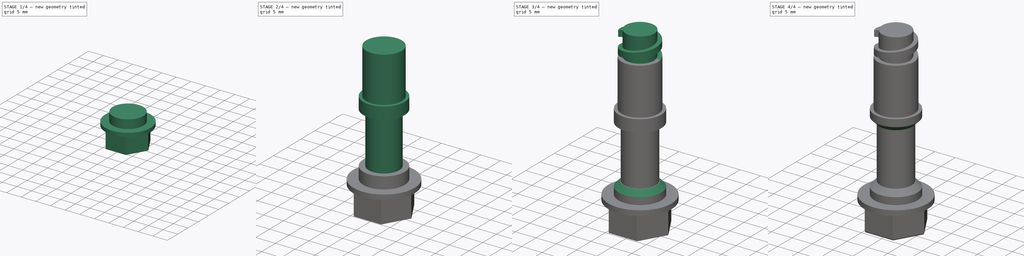
[diagram: build sequence overview — one tinted view per stage of 4, left to right]
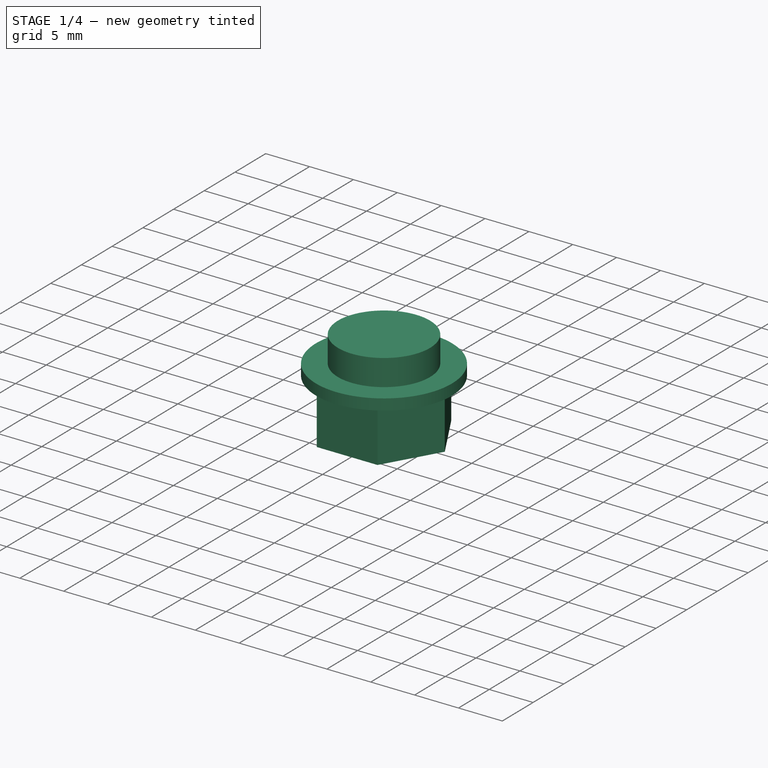
[diagram: stage 1 of 4 — iso view after this stage's code; geometry added in this stage tinted green]
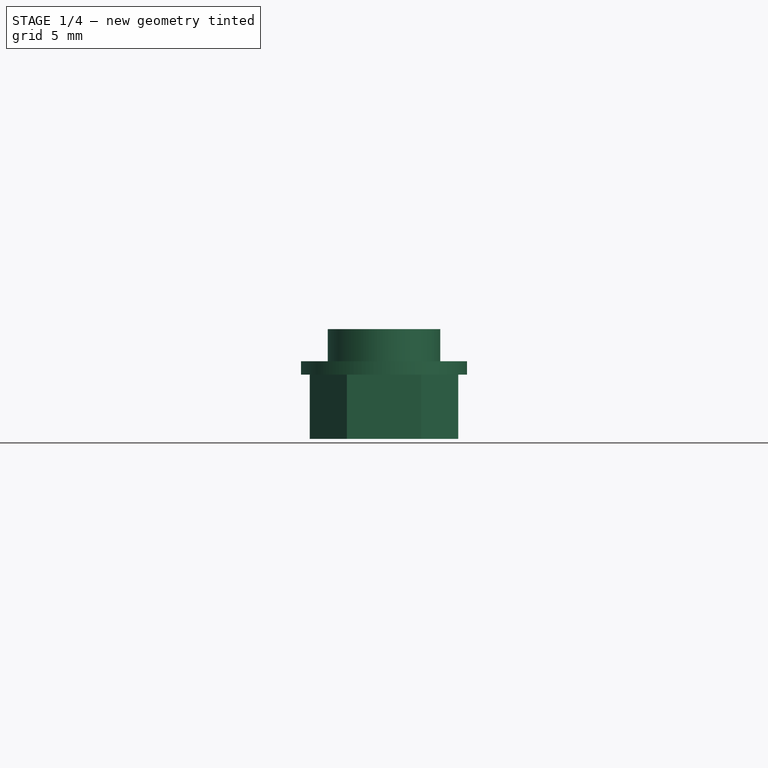
[diagram: stage 1 of 4 — front view after this stage's code; geometry added in this stage tinted green]
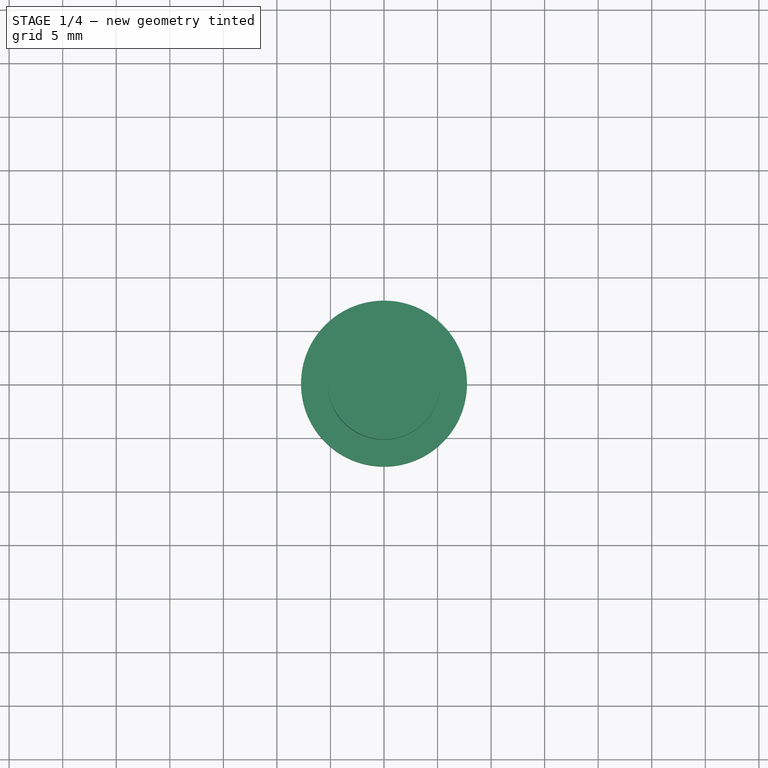
[diagram: stage 1 of 4 — top view after this stage's code; geometry added in this stage tinted green]
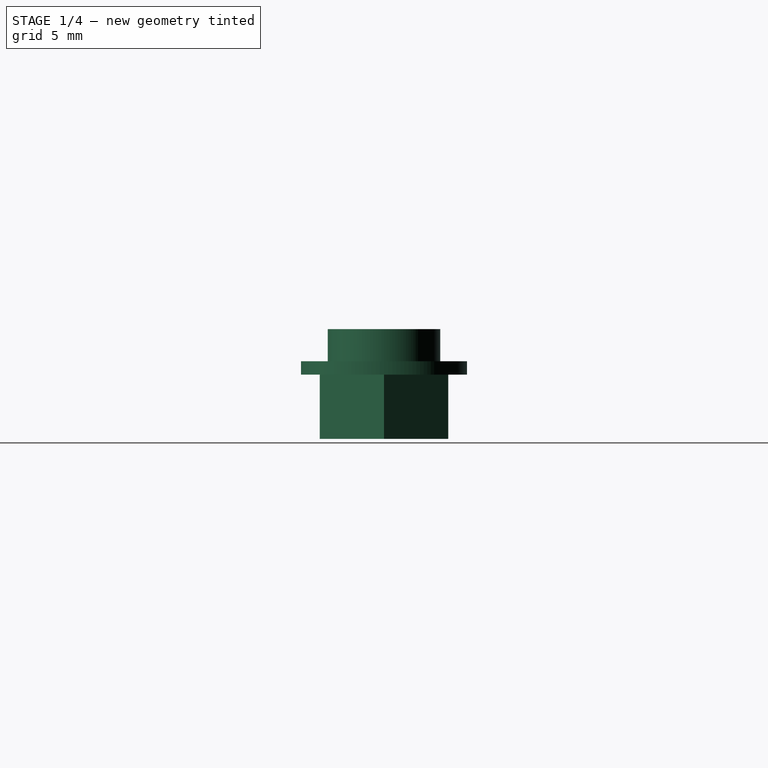
[diagram: stage 1 of 4 — right view after this stage's code; geometry added in this stage tinted green]
FCSTD DOCUMENT  (FreeCAD 0.20R29177 +426 (Git))
Label: ReplacementScrew
License: All rights reserved
LicenseURL: http://en.wikipedia.org/wiki/All_rights_reserved
objects: Sketcher::SketchObject×9, PartDesign::Pad×7, PartDesign::Chamfer×2, PartDesign::Fillet×2, PartDesign::Pocket×1, PartDesign::AdditiveHelix×1, PartDesign::Body×1, App::Part×1
note: 36 computed .brp shape members not serialized (recipe doc carries the construction recipe); baked Part::Feature solids carry a one-line shape summary decoded from their .brp

FEATURE [Sketcher::SketchObject] Sketch
  FullyConstrained = true
  MapMode = 5
  Support = -> [XY_Plane001]
  sketch-geometry (18):
    g0: LineSegment StartX=-6.9282 StartY=2.64837e-11 StartZ=0 EndX=-3.4641 EndY=6 EndZ=0
    g1: LineSegment StartX=-3.4641 StartY=6 StartZ=0 EndX=3.4641 EndY=6 EndZ=0
    g2: LineSegment StartX=3.4641 StartY=6 StartZ=0 EndX=6.9282 EndY=0 EndZ=0
    g3: LineSegment StartX=6.9282 StartY=0 StartZ=0 EndX=3.4641 EndY=-6 EndZ=0
    g4: LineSegment StartX=3.4641 StartY=-6 StartZ=0 EndX=-3.4641 EndY=-6 EndZ=0
    g5: LineSegment StartX=-3.4641 StartY=-6 StartZ=0 EndX=-6.9282 EndY=2.64837e-11 EndZ=0
    g6: LineSegment StartX=-4.6 StartY=1.1 StartZ=0 EndX=-1.1 EndY=1.1 EndZ=0
    g7: LineSegment StartX=4.6 StartY=1.1 StartZ=0 EndX=4.6 EndY=-1.1 EndZ=0
    g8: LineSegment StartX=4.6 StartY=-1.1 StartZ=0 EndX=1.1 EndY=-1.1 EndZ=0
    g9: LineSegment StartX=-4.6 StartY=-1.1 StartZ=0 EndX=-4.6 EndY=1.1 EndZ=0
    g10: LineSegment StartX=-1.1 StartY=4.6 StartZ=0 EndX=1.1 EndY=4.6 EndZ=0
    g11: LineSegment StartX=1.1 StartY=4.6 StartZ=0 EndX=1.1 EndY=1.1 EndZ=0
    g12: LineSegment StartX=1.1 StartY=-4.6 StartZ=0 EndX=-1.1 EndY=-4.6 EndZ=0
    g13: LineSegment StartX=-1.1 StartY=-4.6 StartZ=0 EndX=-1.1 EndY=-1.1 EndZ=0
    g14: LineSegment StartX=-1.1 StartY=-1.1 StartZ=0 EndX=-4.6 EndY=-1.1 EndZ=0
    g15: LineSegment StartX=1.1 StartY=-1.1 StartZ=0 EndX=1.1 EndY=-4.6 EndZ=0
    g16: LineSegment StartX=1.1 StartY=1.1 StartZ=0 EndX=4.6 EndY=1.1 EndZ=0
    g17: LineSegment StartX=-1.1 StartY=1.1 StartZ=0 EndX=-1.1 EndY=4.6 EndZ=0
  constraints (54):
    c: Horizontal(g1)
    c: Coincident(g2,g1)
    c: Coincident(g3,g2)
    c: Coincident(g4,g3)
    c: Horizontal(g4)
    c: Coincident(g5,g4)
    c: Coincident(g5,g0)
    c: Coincident(g0,g1)
    c: Equal(g0,g3)
    c: Equal(g5,g2)
    c: Equal(g1,g4)
    c: Angle(g1,g2) = 2.0944
    c: Angle(g0,g1) = 2.0944
    c: Distance(g0,g3) = 12
    c: Distance(g1,g4) = 12
    c: Distance(g0,g2) = 12
    c: DistanceY(g2,g-1) = 0
    c: Distance(g-1,g3) = 6
    c: Coincident(g16,g7)
    c: Coincident(g7,g8)
    c: Coincident(g14,g9)
    c: Coincident(g9,g6)
    c: Horizontal(g6)
    c: Horizontal(g8)
    c: Vertical(g7)
    c: Vertical(g9)
    c: Distance(g16,g9) = 9.2
    c: DistanceY(g7,g16) = 2.2
    c: Coincident(g10,g11)
    c: Coincident(g15,g12)
    c: Coincident(g12,g13)
    c: Coincident(g17,g10)
    c: Horizontal(g10)
    c: Horizontal(g12)
    c: Vertical(g11)
    c: Vertical(g13)
    c: Distance(g12) = 2.2
    c: Distance(g10,g12) = 9.2
    c: DistanceX(g10,g16) = 3.5
    c: DistanceY(g16,g10) = 3.5
    c: Coincident(g15,g8)
    c: Coincident(g16,g11)
    c: Coincident(g13,g14)
    c: Coincident(g17,g6)
    c: Equal(g16,g8)
    c: Equal(g11,g17)
    c: Equal(g17,g6)
    c: Equal(g6,g14)
    c: Equal(g14,g13)
    c: Equal(g13,g15)
    c: Horizontal(g14)
    c: Vertical(g17)
    c: DistanceX(g-1,g11) = 1.1
    c: DistanceY(g8,g-1) = 1.1
FEATURE [PartDesign::Pad] Pad
  Direction = (0,0,1)
  Length = 6
  Length2 = 10
  Profile = -> Sketch
  ReferenceAxis = -> Sketch [N_Axis]
  Type = 0
FEATURE [Sketcher::SketchObject] Sketch001
  FullyConstrained = true
  MapMode = 5
  Placement = pos=(0,0,6) rot=(0,0,1;0rad)
  Support = -> [Pad]
  sketch-geometry (1):
    g0: Circle CenterX=0 CenterY=0 CenterZ=0 NormalX=0 NormalY=0 NormalZ=1 AngleXU=0 Radius=7.75
  constraints (2):
    c: Coincident(g0,g-1)
    c: Diameter(g0) = 15.5
FEATURE [PartDesign::Pad] Pad001
  BaseFeature = -> Pad
  Direction = (0,0,1)
  Length = 1.25
  Length2 = 10
  Profile = -> Sketch001
  ReferenceAxis = -> Sketch001 [N_Axis]
  Type = 0
FEATURE [Sketcher::SketchObject] Sketch002
  FullyConstrained = true
  MapMode = 5
  Placement = pos=(0,0,7.25) rot=(0,0,1;0rad)
  Support = -> [Pad001]
  sketch-geometry (1):
    g0: Circle CenterX=0 CenterY=0 CenterZ=0 NormalX=0 NormalY=0 NormalZ=1 AngleXU=0 Radius=5.25
  constraints (2):
    c: Coincident(g0,g-1)
    c: Diameter(g0) = 10.5
FEATURE [PartDesign::Pad] Pad002
  BaseFeature = -> Pad001
  Direction = (0,0,1)
  Length = 3
  Length2 = 10
  Profile = -> Sketch002
  ReferenceAxis = -> Sketch002 [N_Axis]
  Type = 0
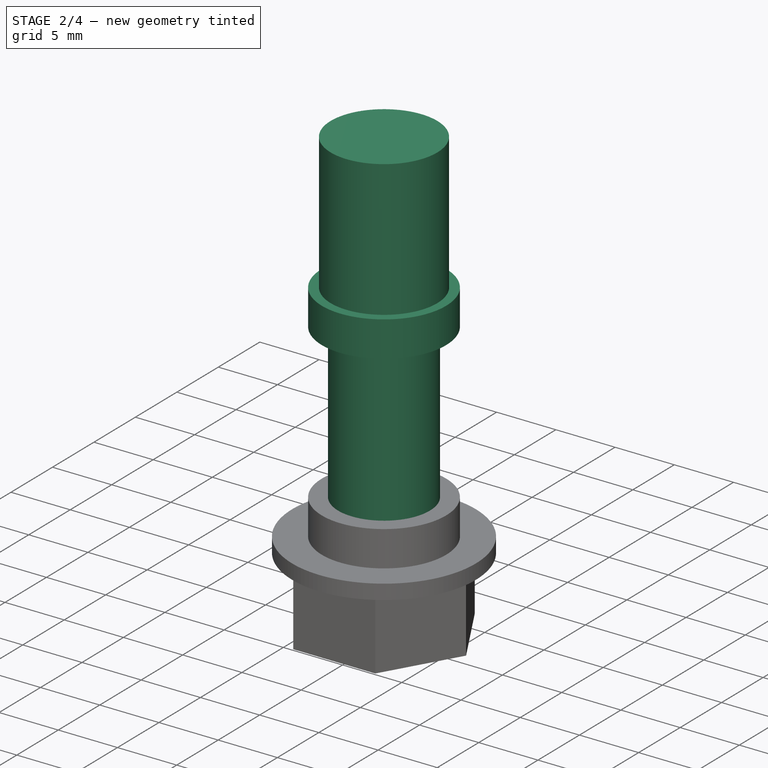
[diagram: stage 2 of 4 — iso view after this stage's code; geometry added in this stage tinted green]
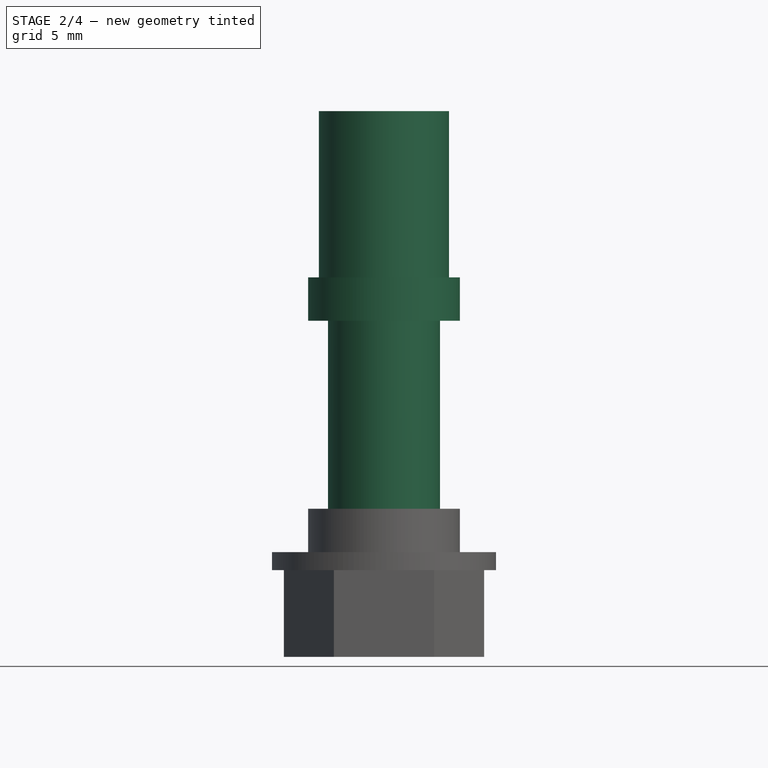
[diagram: stage 2 of 4 — front view after this stage's code; geometry added in this stage tinted green]
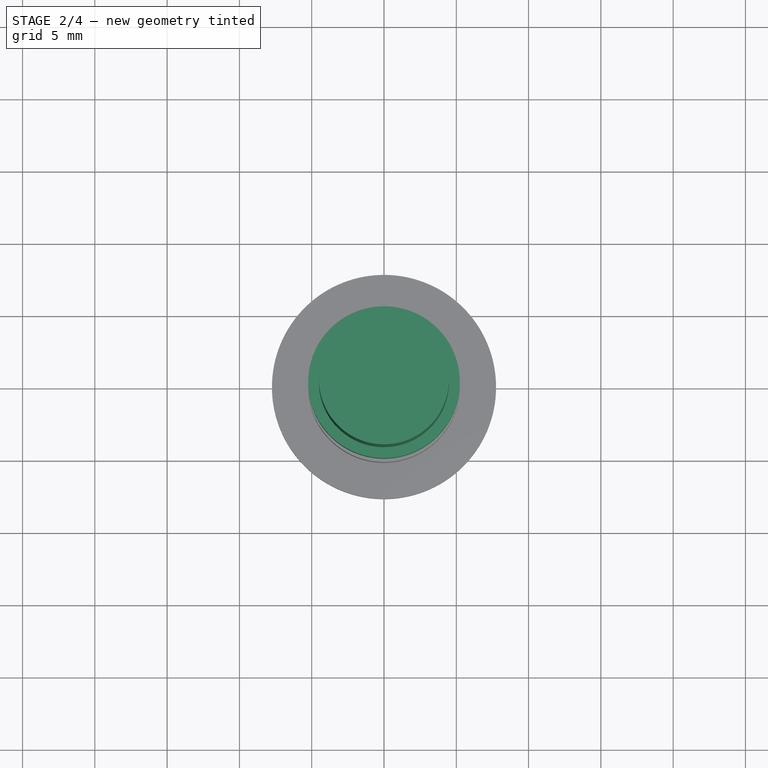
[diagram: stage 2 of 4 — top view after this stage's code; geometry added in this stage tinted green]
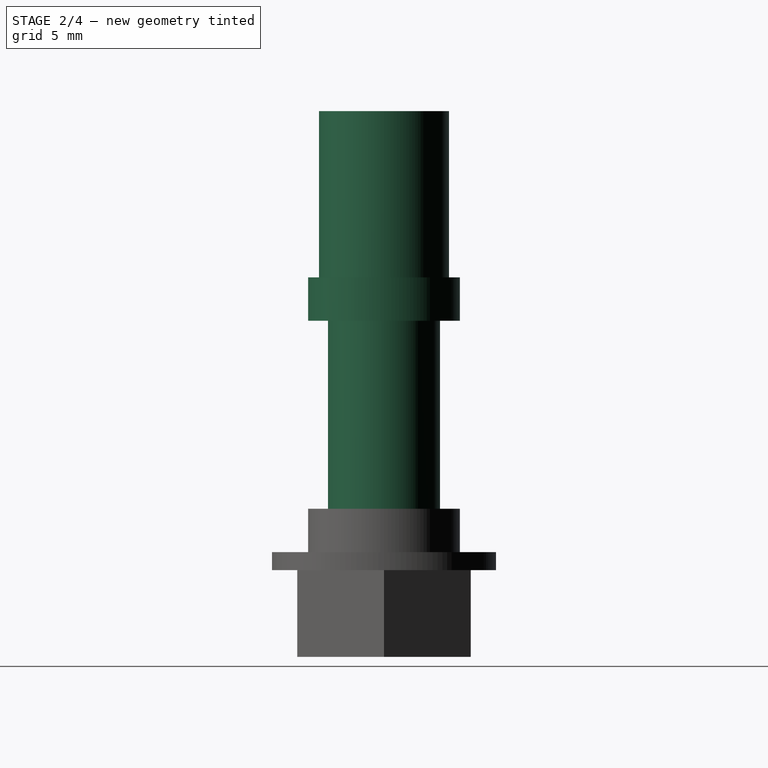
[diagram: stage 2 of 4 — right view after this stage's code; geometry added in this stage tinted green]
FEATURE [Sketcher::SketchObject] Sketch003
  FullyConstrained = true
  MapMode = 5
  Placement = pos=(0,0,10.25) rot=(0,0,1;0rad)
  Support = -> [Pad002]
  sketch-geometry (1):
    g0: Circle CenterX=0 CenterY=0 CenterZ=0 NormalX=0 NormalY=0 NormalZ=1 AngleXU=0 Radius=3.875
  constraints (2):
    c: Coincident(g0,g-1)
    c: Diameter(g0) = 7.75
FEATURE [PartDesign::Pad] Pad003
  BaseFeature = -> Pad002
  Direction = (0,0,1)
  Length = 13
  Length2 = 10
  Profile = -> Sketch003
  ReferenceAxis = -> Sketch003 [N_Axis]
  Type = 0
FEATURE [Sketcher::SketchObject] Sketch004
  FullyConstrained = true
  MapMode = 5
  Placement = pos=(0,0,23.25) rot=(0,0,1;0rad)
  Support = -> [Pad003]
  sketch-geometry (1):
    g0: Circle CenterX=0 CenterY=0 CenterZ=0 NormalX=0 NormalY=0 NormalZ=1 AngleXU=0 Radius=5.25
  constraints (2):
    c: Coincident(g0,g-1)
    c: Diameter(g0) = 10.5
FEATURE [PartDesign::Pad] Pad004
  BaseFeature = -> Pad003
  Direction = (0,0,1)
  Length = 3
  Length2 = 10
  Profile = -> Sketch004
  ReferenceAxis = -> Sketch004 [N_Axis]
  Type = 0
FEATURE [Sketcher::SketchObject] Sketch005
  FullyConstrained = true
  MapMode = 5
  Placement = pos=(0,0,26.25) rot=(0,0,1;0rad)
  Support = -> [Pad004]
  sketch-geometry (1):
    g0: Circle CenterX=0 CenterY=0 CenterZ=0 NormalX=0 NormalY=0 NormalZ=1 AngleXU=0 Radius=4.5
  constraints (2):
    c: Coincident(g0,g-1)
    c: Diameter(g0) = 9
FEATURE [PartDesign::Pad] Pad005
  BaseFeature = -> Pad004
  Direction = (0,0,1)
  Length = 11.5
  Length2 = 10
  Profile = -> Sketch005
  ReferenceAxis = -> Sketch005 [N_Axis]
  Type = 0
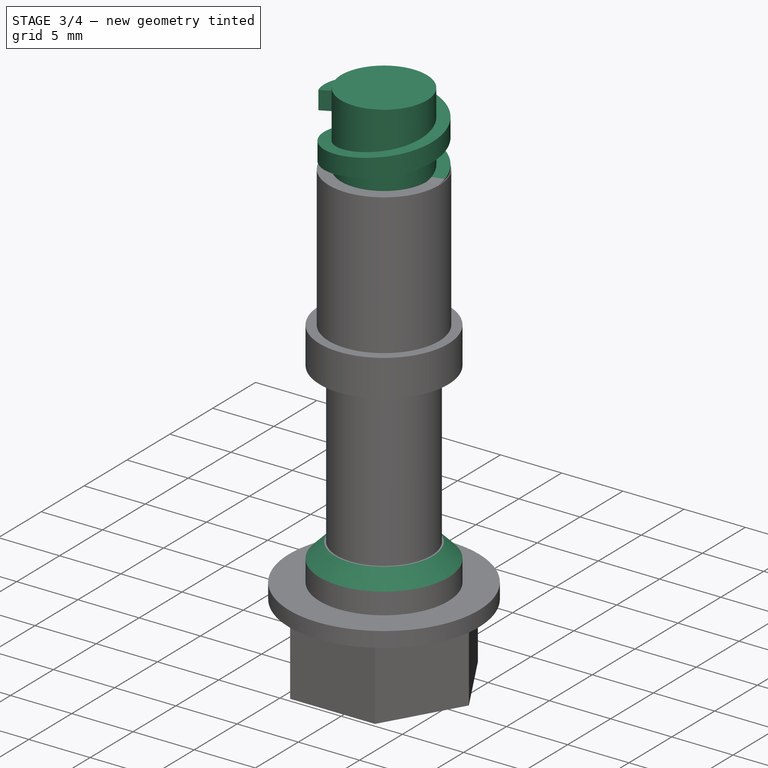
[diagram: stage 3 of 4 — iso view after this stage's code; geometry added in this stage tinted green]
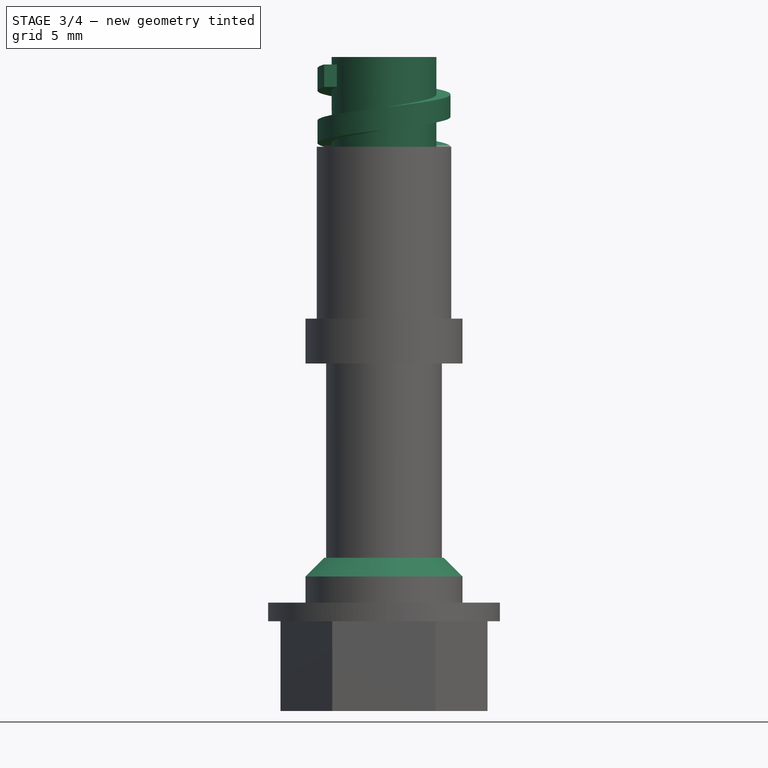
[diagram: stage 3 of 4 — front view after this stage's code; geometry added in this stage tinted green]
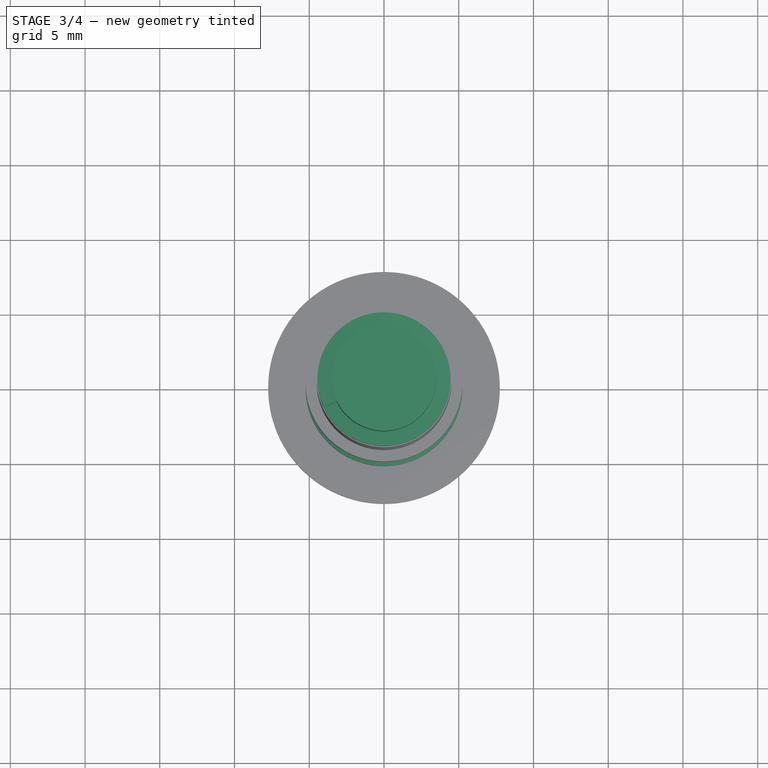
[diagram: stage 3 of 4 — top view after this stage's code; geometry added in this stage tinted green]
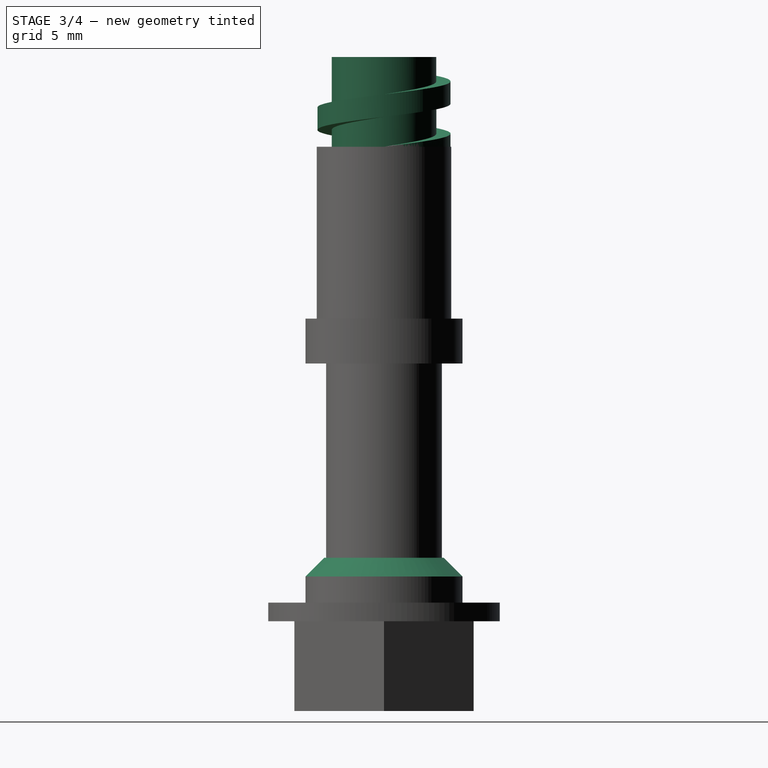
[diagram: stage 3 of 4 — right view after this stage's code; geometry added in this stage tinted green]
FEATURE [Sketcher::SketchObject] Sketch006
  FullyConstrained = true
  MapMode = 5
  Placement = pos=(0,0,37.75) rot=(0,0,1;0rad)
  Support = -> [Pad005]
  sketch-geometry (1):
    g0: Circle CenterX=0 CenterY=0 CenterZ=0 NormalX=0 NormalY=0 NormalZ=1 AngleXU=0 Radius=3.5
  constraints (2):
    c: Coincident(g0,g-1)
    c: Diameter(g0) = 7
FEATURE [PartDesign::Pad] Pad006
  BaseFeature = -> Pad005
  Direction = (0,0,1)
  Length = 6
  Length2 = 10
  Profile = -> Sketch006
  ReferenceAxis = -> Sketch006 [N_Axis]
  Type = 0
FEATURE [Sketcher::SketchObject] Sketch007
  FullyConstrained = true
  MapMode = 5
  Placement = pos=(0,0,6) rot=(1,0,0;3.14159rad)
  Support = -> [Pad006]
  sketch-geometry (1):
    g0: Circle CenterX=0 CenterY=0 CenterZ=0 NormalX=0 NormalY=0 NormalZ=1 AngleXU=0 Radius=2.5
  constraints (2):
    c: Coincident(g0,g-1)
    c: Diameter(g0) = 5
FEATURE [PartDesign::Pocket] Pocket
  BaseFeature = -> Pad006
  Direction = (0,0,1)
  Length = 31
  Length2 = 9
  Profile = -> Sketch007
  ReferenceAxis = -> Sketch007 [N_Axis]
  Type = 4
FEATURE [Sketcher::SketchObject] Sketch008
  FullyConstrained = true
  MapMode = 5
  Placement = pos=(0,0,0) rot=(1,0,0;1.5708rad)
  Support = -> [XZ_Plane001]
  sketch-geometry (4):
    g0: LineSegment StartX=4.45 StartY=37.75 StartZ=0 EndX=3.45 EndY=37.75 EndZ=0
    g1: LineSegment StartX=3.45 StartY=37.75 StartZ=0 EndX=3.45 EndY=36.25 EndZ=0
    g2: LineSegment StartX=3.45 StartY=36.25 StartZ=0 EndX=4.45 EndY=36.25 EndZ=0
    g3: LineSegment StartX=4.45 StartY=36.25 StartZ=0 EndX=4.45 EndY=37.75 EndZ=0
  constraints (12):
    c: Coincident(g0,g1)
    c: Coincident(g1,g2)
    c: Coincident(g2,g3)
    c: Coincident(g3,g0)
    c: Horizontal(g0)
    c: Horizontal(g2)
    c: Vertical(g1)
    c: Vertical(g3)
    c: Distance(g2) = 1
    c: Distance(g3) = 1.5
    c: DistanceX(g-1,g0) = 4.45
    c: DistanceY(g-1,g0) = 37.75
FEATURE [PartDesign::AdditiveHelix] AdditiveHelix
  Angle = 0
  Axis = (0,-2e-16,1)
  Base = (0,0,0)
  BaseFeature = -> Pocket
  Growth = 0
  HasBeenEdited = true
  Height = 5.5
  LeftHanded = false
  Mode = 0
  Outside = false
  Pitch = 3.5
  Profile = -> Sketch008
  ReferenceAxis = -> Sketch008 [V_Axis]
  Turns = 1.57143
FEATURE [PartDesign::Chamfer] Chamfer
  Angle = 45
  Base = -> AdditiveHelix [Edge10]
  BaseFeature = -> AdditiveHelix
  ChamferType = 0
  FlipDirection = false
  Size = 1.25
  Size2 = 1
  SupportTransform = false
  UseAllEdges = false
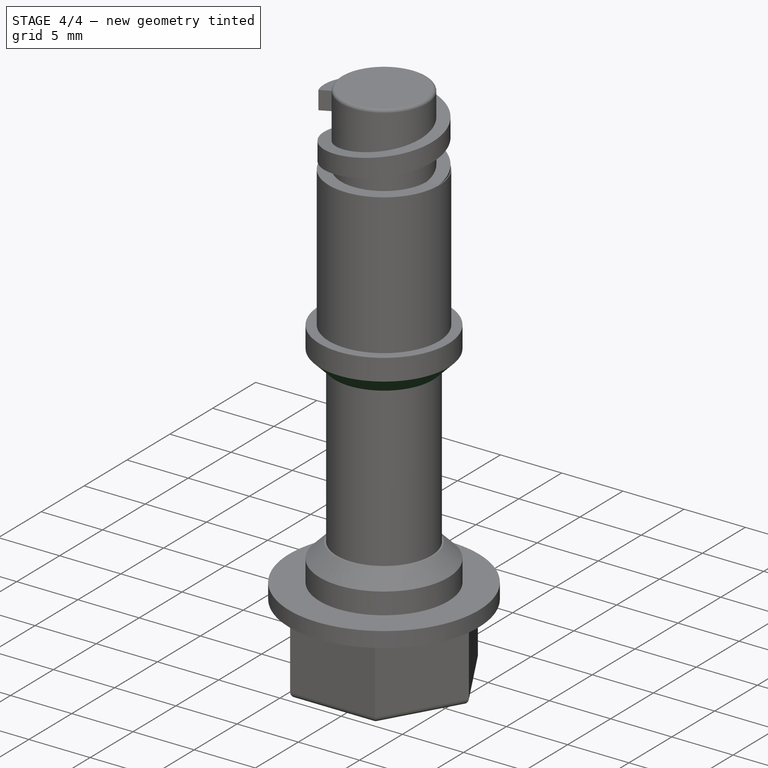
[diagram: stage 4 of 4 — iso view after this stage's code; geometry added in this stage tinted green]
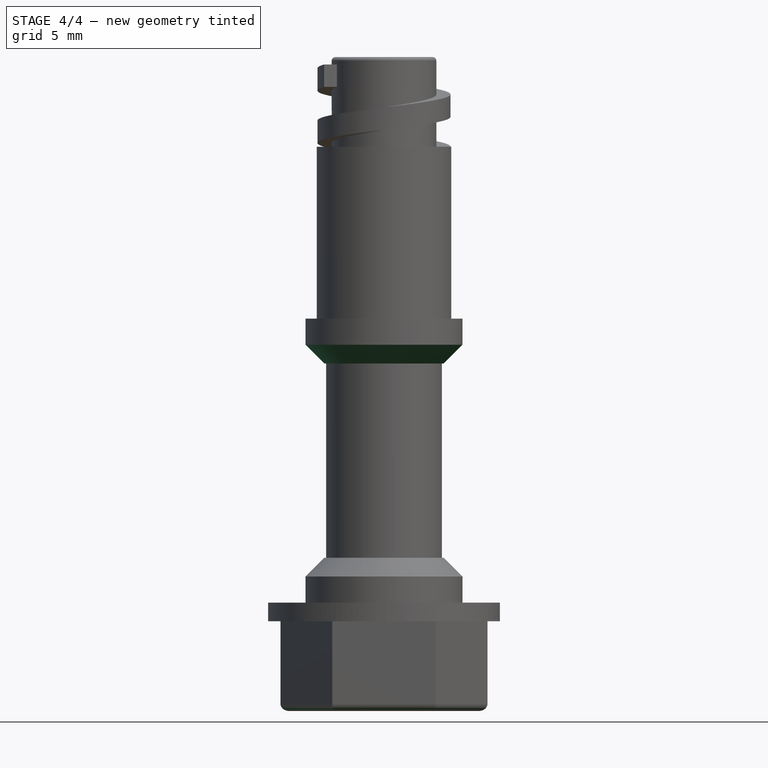
[diagram: stage 4 of 4 — front view after this stage's code; geometry added in this stage tinted green]
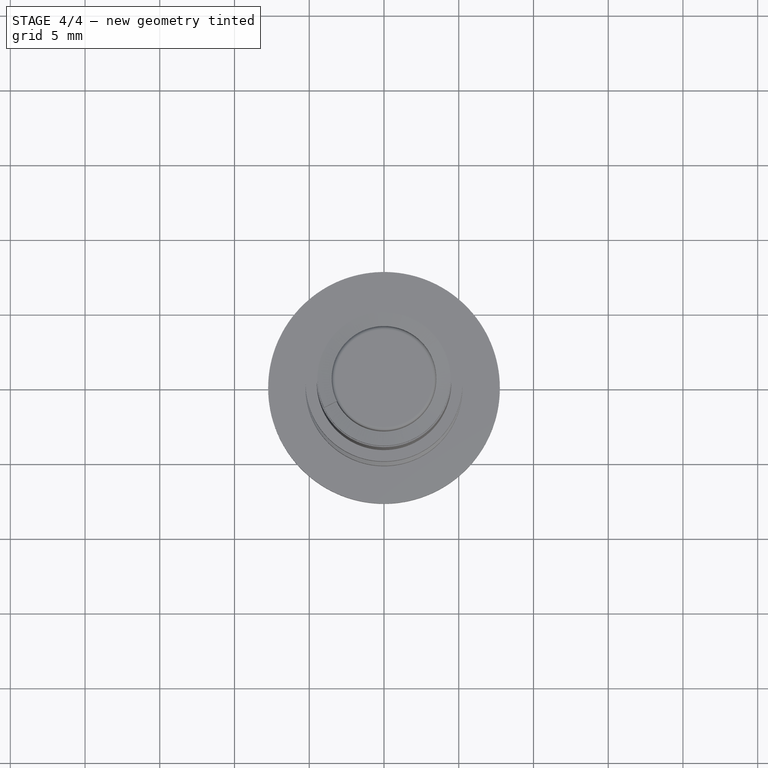
[diagram: stage 4 of 4 — top view after this stage's code; geometry added in this stage tinted green]
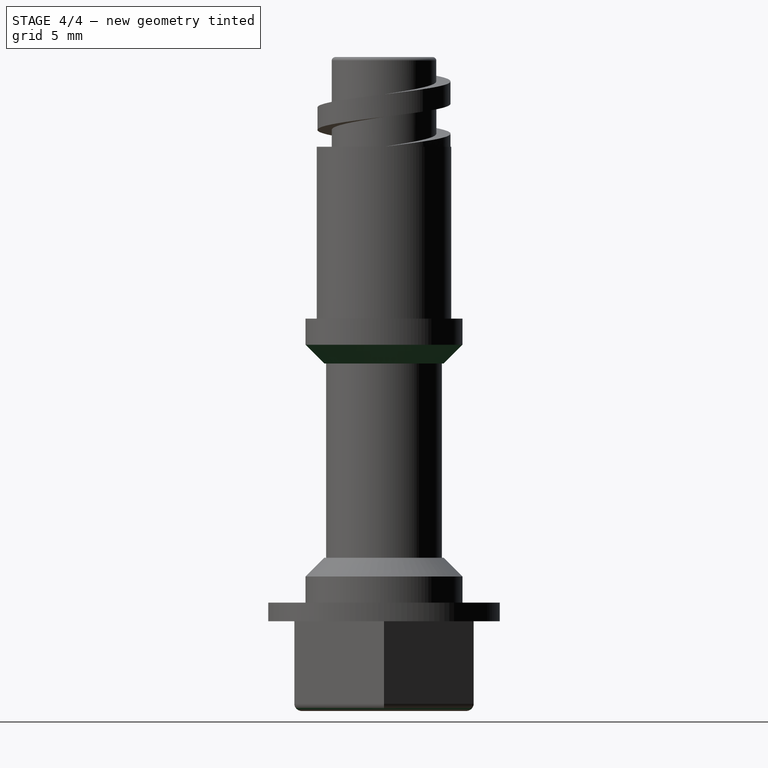
[diagram: stage 4 of 4 — right view after this stage's code; geometry added in this stage tinted green]
FEATURE [PartDesign::Chamfer] Chamfer001
  Angle = 45
  Base = -> Chamfer [Edge9]
  BaseFeature = -> Chamfer
  ChamferType = 0
  FlipDirection = false
  Size = 1.25
  Size2 = 1
  SupportTransform = false
  UseAllEdges = false
FEATURE [PartDesign::Fillet] Fillet
  Base = -> Chamfer001 [Edge56,Edge58,Edge59,Edge50,Edge52,Edge54]
  BaseFeature = -> Chamfer001
  Radius = 0.5
  SupportTransform = false
  UseAllEdges = false
FEATURE [PartDesign::Fillet] Fillet001
  Base = -> Fillet [Edge117]
  BaseFeature = -> Fillet
  Radius = 0.25
  SupportTransform = false
  UseAllEdges = false
FEATURE [PartDesign::Body] Body
  Group = -> [Sketch,Pad,Sketch001,Pad001,Sketch002,Pad002,Sketch003,Pad003,Sketch004,Pad004,Sketch005,Pad005,Sketch006,Pad006,Sketch007,Pocket,Sketch008,AdditiveHelix,Chamfer,Chamfer001,Fillet,Fillet001]
  Origin = -> Origin001
  Tip = -> Fillet001
FEATURE [App::Part] Part
  Group = -> [Body]
  Origin = -> Origin
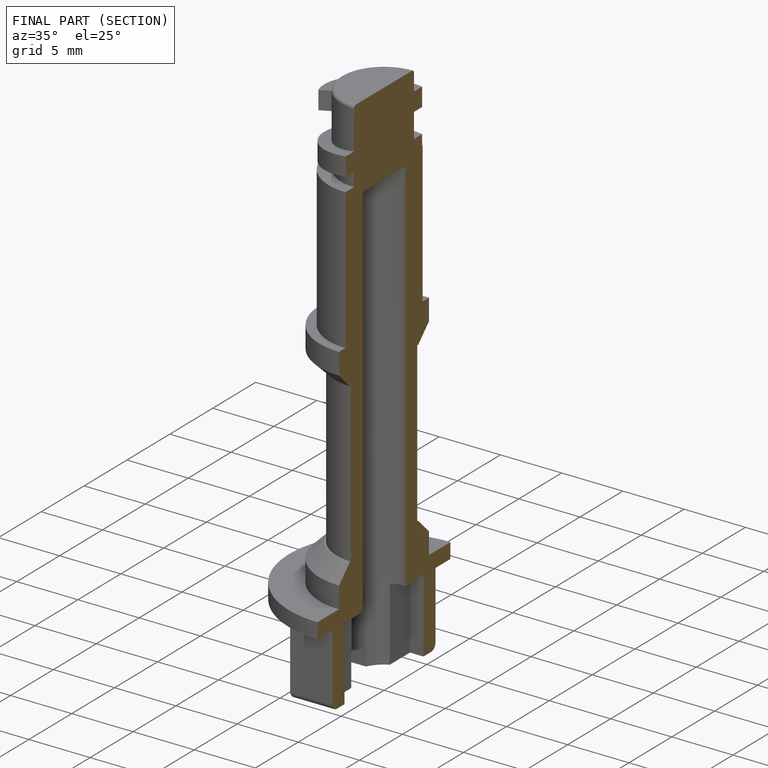
[diagram: finished part — half-section view (interior)]
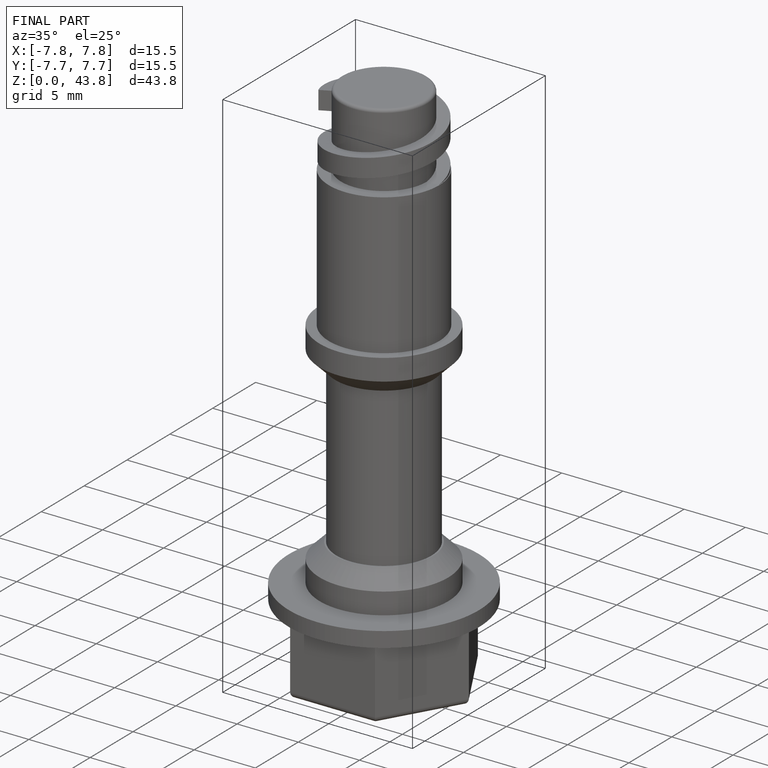
[diagram: finished part — iso view with bounding-box wireframe]
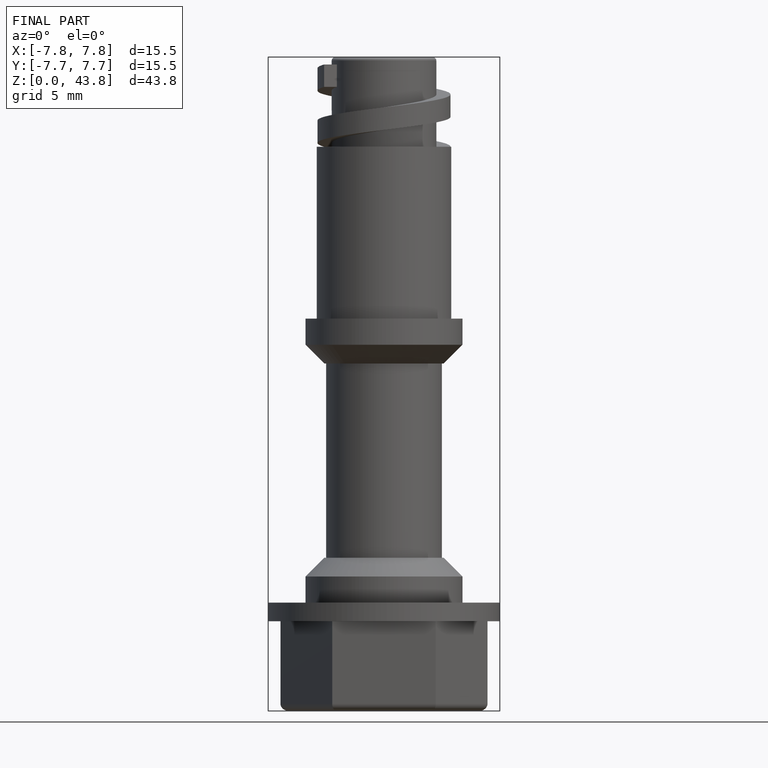
[diagram: finished part — front view with bounding-box wireframe]
